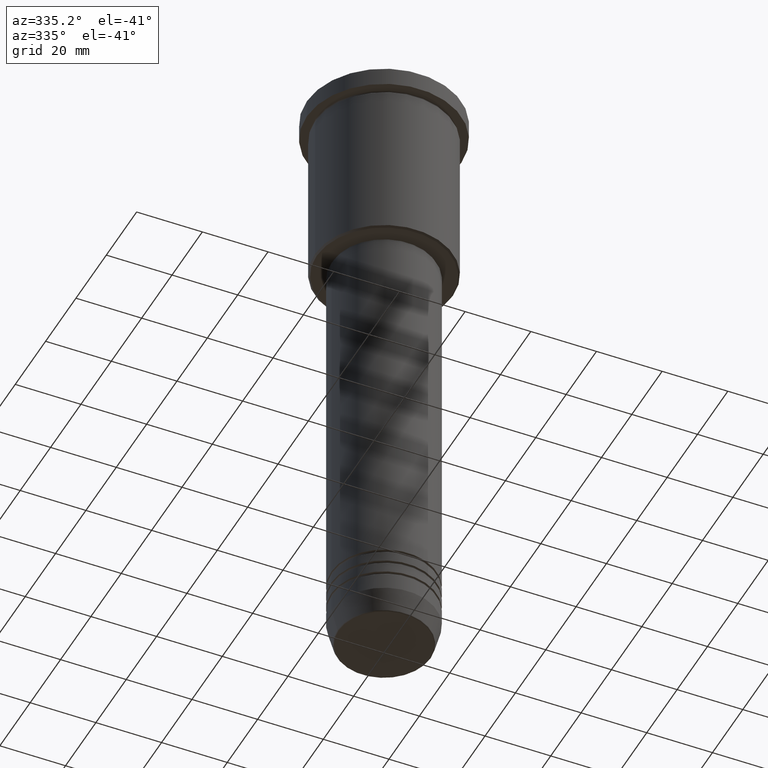
[diagram: clean part render]
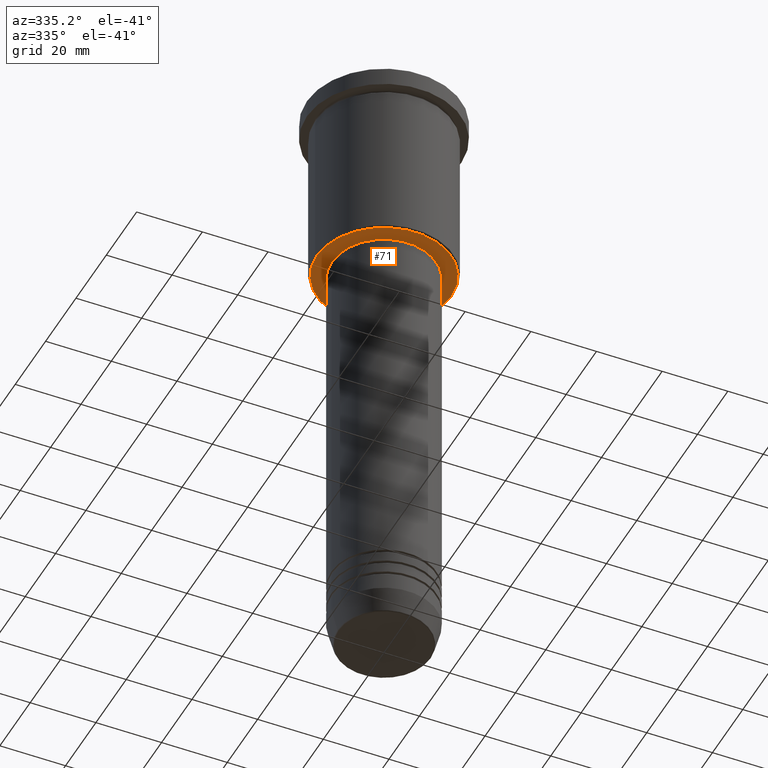
[diagram: same view with one face highlighted and labeled with its STEP entity id]
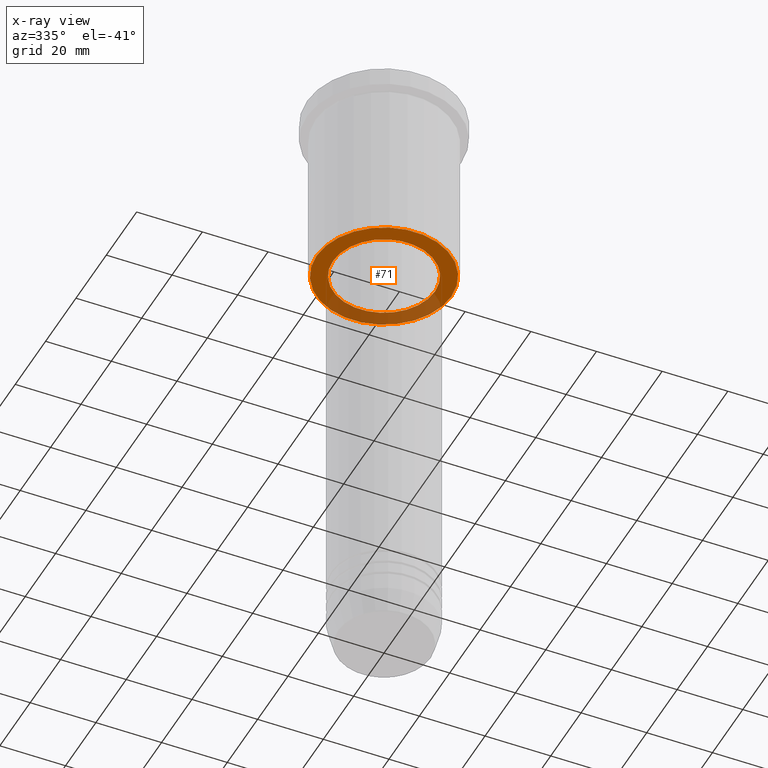
[diagram: x-ray of the same camera — body ghosted, the highlighted face saturated]
A machine part, auxiliary view. The second image highlights one B-rep face of the part: STEP entity #71.
The next image is the same camera in x-ray: the body ghosted, the highlighted face saturated — about 31% of this face is hidden behind the body in this view.
In plain terms, the highlighted planar face has unit normal (0, 0, -1).
Its self-contained STEP definition (entity closure, byte-faithful):
#71 = ADVANCED_FACE ( 'NONE', ( #252, #796 ), #639, .T. ) ;
#79 = AXIS2_PLACEMENT_3D ( 'NONE', #670, #1032, #689 ) ;
#167 = EDGE_LOOP ( 'NONE', ( #237, #275 ) ) ;
#185 = DIRECTION ( 'NONE',  ( 1.000000000000000000, 0.000000000000000000, 0.000000000000000000 ) ) ;
#200 = VERTEX_POINT ( 'NONE', #1021 ) ;
#237 = ORIENTED_EDGE ( 'NONE', *, *, #477, .T. ) ;
#252 = FACE_OUTER_BOUND ( 'NONE', #167, .T. ) ;
#260 = CARTESIAN_POINT ( 'NONE',  ( 0.000000000000000000, 0.000000000000000000, -56.00000000000000000 ) ) ;
#263 = CARTESIAN_POINT ( 'NONE',  ( -20.49999999999998934, 2.541142108230757480E-15, -56.00000000000000000 ) ) ;
#275 = ORIENTED_EDGE ( 'NONE', *, *, #1116, .T. ) ;
#281 = CARTESIAN_POINT ( 'NONE',  ( 0.000000000000000000, 0.000000000000000000, -56.00000000000000000 ) ) ;
#322 = CIRCLE ( 'NONE', #992, 15.50000000000000000 ) ;
#330 = ORIENTED_EDGE ( 'NONE', *, *, #678, .T. ) ;
#367 = DIRECTION ( 'NONE',  ( 0.000000000000000000, 0.000000000000000000, -1.000000000000000000 ) ) ;
#368 = CIRCLE ( 'NONE', #495, 15.50000000000000000 ) ;
#388 = AXIS2_PLACEMENT_3D ( 'NONE', #281, #642, #902 ) ;
#398 = VERTEX_POINT ( 'NONE', #775 ) ;
#472 = CARTESIAN_POINT ( 'NONE',  ( -15.50000000000000000, 1.898202538678397557E-15, -56.00000000000000000 ) ) ;
#477 = EDGE_CURVE ( 'NONE', #398, #638, #480, .T. ) ;
#480 = CIRCLE ( 'NONE', #79, 20.49999999999998934 ) ;
#495 = AXIS2_PLACEMENT_3D ( 'NONE', #260, #624, #185 ) ;
#515 = CIRCLE ( 'NONE', #388, 20.49999999999998934 ) ;
#534 = ORIENTED_EDGE ( 'NONE', *, *, #914, .T. ) ;
#543 = DIRECTION ( 'NONE',  ( -1.000000000000000000, 0.000000000000000000, -0.000000000000000000 ) ) ;
#624 = DIRECTION ( 'NONE',  ( -0.000000000000000000, -0.000000000000000000, 1.000000000000000000 ) ) ;
#638 = VERTEX_POINT ( 'NONE', #263 ) ;
#639 = PLANE ( 'NONE',  #776 ) ;
#642 = DIRECTION ( 'NONE',  ( 0.000000000000000000, 0.000000000000000000, -1.000000000000000000 ) ) ;
#670 = CARTESIAN_POINT ( 'NONE',  ( 0.000000000000000000, 0.000000000000000000, -56.00000000000000000 ) ) ;
#678 = EDGE_CURVE ( 'NONE', #1125, #200, #322, .T. ) ;
#689 = DIRECTION ( 'NONE',  ( -1.000000000000000000, 0.000000000000000000, 0.000000000000000000 ) ) ;
#775 = CARTESIAN_POINT ( 'NONE',  ( 20.49999999999998934, 0.000000000000000000, -56.00000000000000000 ) ) ;
#776 = AXIS2_PLACEMENT_3D ( 'NONE', #1082, #367, #543 ) ;
#780 = CARTESIAN_POINT ( 'NONE',  ( 0.000000000000000000, 0.000000000000000000, -56.00000000000000000 ) ) ;
#796 = FACE_BOUND ( 'NONE', #1046, .T. ) ;
#902 = DIRECTION ( 'NONE',  ( -1.000000000000000000, 0.000000000000000000, 0.000000000000000000 ) ) ;
#914 = EDGE_CURVE ( 'NONE', #200, #1125, #368, .T. ) ;
#972 = DIRECTION ( 'NONE',  ( -0.000000000000000000, -0.000000000000000000, 1.000000000000000000 ) ) ;
#992 = AXIS2_PLACEMENT_3D ( 'NONE', #780, #972, #1147 ) ;
#1021 = CARTESIAN_POINT ( 'NONE',  ( 15.50000000000000000, 0.000000000000000000, -56.00000000000000000 ) ) ;
#1032 = DIRECTION ( 'NONE',  ( 0.000000000000000000, 0.000000000000000000, -1.000000000000000000 ) ) ;
#1046 = EDGE_LOOP ( 'NONE', ( #534, #330 ) ) ;
#1082 = CARTESIAN_POINT ( 'NONE',  ( 0.000000000000000000, 21.00000000000000000, -56.00000000000000000 ) ) ;
#1116 = EDGE_CURVE ( 'NONE', #638, #398, #515, .T. ) ;
#1125 = VERTEX_POINT ( 'NONE', #472 ) ;
#1147 = DIRECTION ( 'NONE',  ( 1.000000000000000000, 0.000000000000000000, 0.000000000000000000 ) ) ;